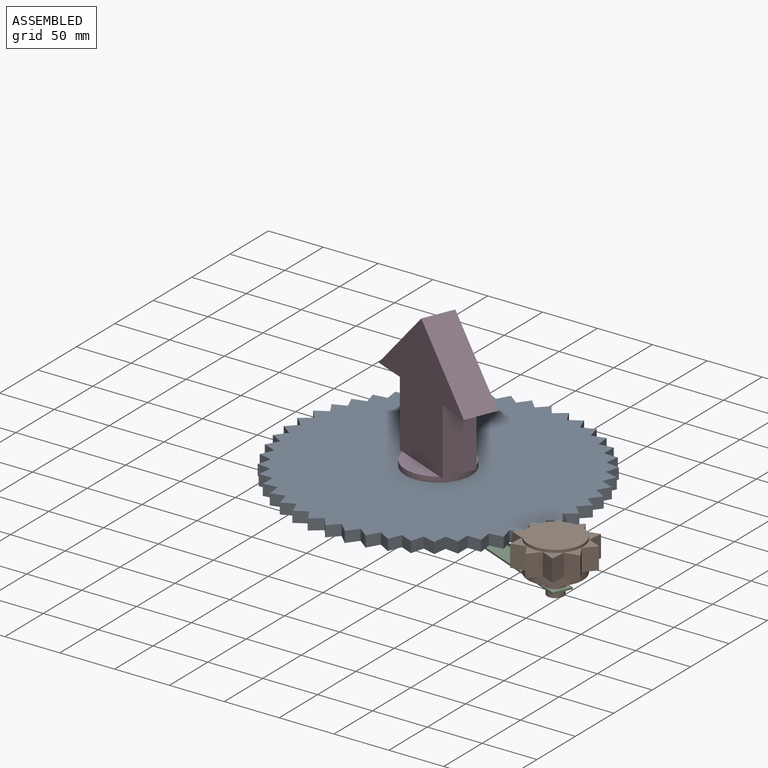
[diagram: assembled view]
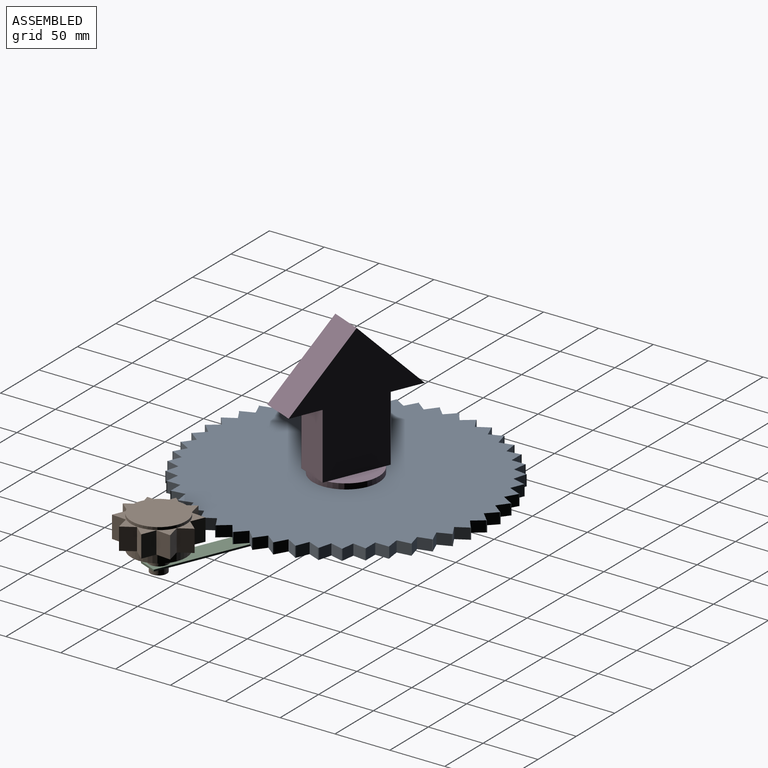
[diagram: assembled view, second angle]
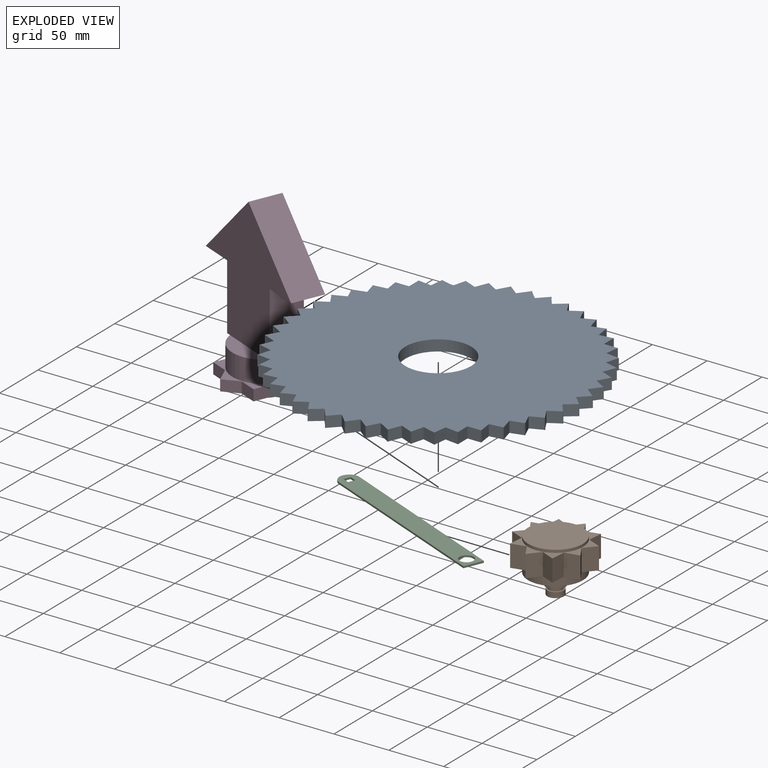
[diagram: exploded view]
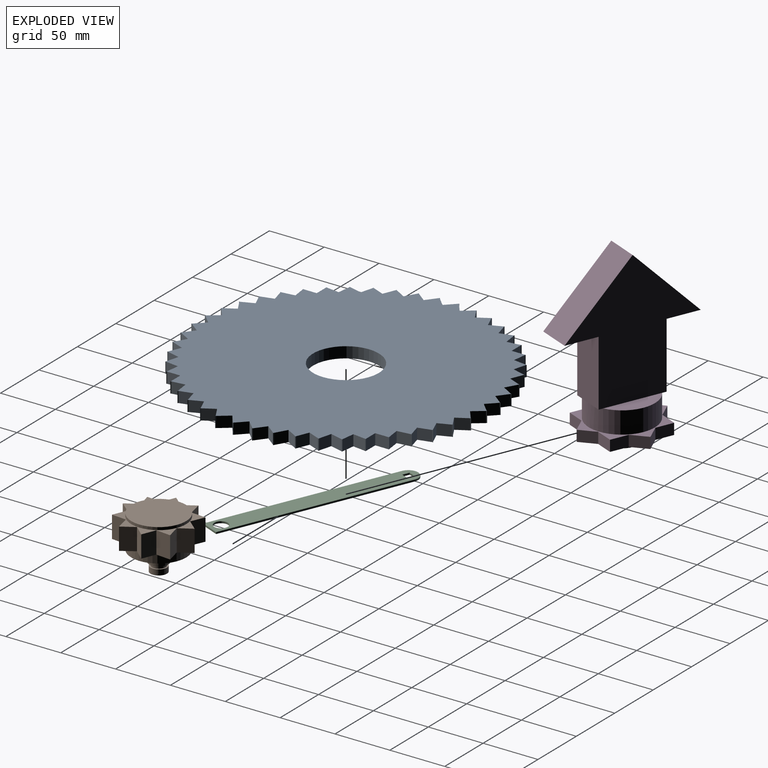
[diagram: exploded view, second angle]
ASSEMBLY  parts=4 mates=3
PART A: 291 faces, bbox 269.3x269.3x10 mm
  f0: cylinder r=30mm len=60mm, axis (0,0,1), area 1885mm2, adj f1,f2
  f1: plane 269.31x269.31mm, normal (0,0,-1), area 50314.6mm2, adj f0,f3,f4,f5,f6,f7,f8,f9
  f2: plane 269.31x269.31mm, normal (0,0,1), area 50314.6mm2, adj f0,f3,f4,f5,f6,f7,f8,f9
  f3: plane 10x0.43mm, normal (-1,0,0), area 4.3mm2, adj f1,f2,f4,f286
  f4: plane 10x0.19mm, normal (0.71,-0.71,0), area 2.7mm2, adj f1,f2,f3,f289
  f5: plane 10x8.59mm, normal (-0.71,-0.71,0), area 121.5mm2, adj f1,f2,f8,f288
  f6: plane 10x0.19mm, normal (-0.71,-0.71,0), area 2.7mm2, adj f1,f2,f7,f287
  f7: plane 10x0.43mm, normal (1,0,0), area 4.3mm2, adj f1,f2,f6,f9
  f8: plane 10x8.59mm, normal (0.71,-0.71,0), area 121.5mm2, adj f1,f2,f5,f290
  f9: plane 10x9.64mm, normal (0.79,-0.61,0), area 121.5mm2, adj f1,f2,f7,f10
  f10: plane 10x9.64mm, normal (-0.61,-0.79,0), area 121.5mm2, adj f1,f2,f9,f15
  f11: plane 10x0.21mm, normal (-0.61,-0.79,0), area 2.7mm2, adj f1,f2,f12,f14
  f12: plane 10x0.43mm, normal (0.99,0.13,0), area 4.3mm2, adj f1,f2,f11,f13
  f13: plane 10.52x10mm, normal (0.87,-0.5,0), area 121.5mm2, adj f1,f2,f12,f16
  f14: plane 10x0.23mm, normal (0.87,-0.5,0), area 2.7mm2, adj f1,f2,f11,f15
  f15: plane 10x0.42mm, normal (-0.97,-0.26,0), area 4.3mm2, adj f1,f2,f10,f14
  f16: plane 10.52x10mm, normal (-0.5,-0.87,0), area 121.5mm2, adj f1,f2,f13,f21
  f17: plane 10x0.23mm, normal (-0.5,-0.87,0), area 2.7mm2, adj f1,f2,f18,f20
  f18: plane 10x0.42mm, normal (0.97,0.26,0), area 4.3mm2, adj f1,f2,f17,f19
  f19: plane 11.23x10mm, normal (0.92,-0.38,0), area 121.5mm2, adj f1,f2,f18,f22
  f20: plane 10x0.25mm, normal (0.92,-0.38,0), area 2.7mm2, adj f1,f2,f17,f21
  f21: plane 10x0.4mm, normal (-0.92,-0.38,0), area 4.3mm2, adj f1,f2,f16,f20
  f22: plane 11.23x10mm, normal (-0.38,-0.92,0), area 121.5mm2, adj f1,f2,f19,f27
  f23: plane 10x0.25mm, normal (-0.38,-0.92,0), area 2.7mm2, adj f1,f2,f24,f26
  f24: plane 10x0.4mm, normal (0.92,0.38,0), area 4.3mm2, adj f1,f2,f23,f25
  f25: plane 11.74x10mm, normal (0.97,-0.26,0), area 121.5mm2, adj f1,f2,f24,f28
  f26: plane 10x0.26mm, normal (0.97,-0.26,0), area 2.7mm2, adj f1,f2,f23,f27
  f27: plane 10x0.38mm, normal (-0.87,-0.5,0), area 4.3mm2, adj f1,f2,f22,f26
  f28: plane 11.74x10mm, normal (-0.26,-0.97,0), area 121.5mm2, adj f1,f2,f25,f33
  f29: plane 10x0.26mm, normal (-0.26,-0.97,0), area 2.7mm2, adj f1,f2,f30,f32
  f30: plane 10x0.38mm, normal (0.87,0.5,0), area 4.3mm2, adj f1,f2,f29,f31
  f31: plane 12.05x10mm, normal (0.99,-0.13,0), area 121.5mm2, adj f1,f2,f30,f34
  f32: plane 10x0.26mm, normal (0.99,-0.13,0), area 2.7mm2, adj f1,f2,f29,f33
  f33: plane 10x0.34mm, normal (-0.79,-0.61,0), area 4.3mm2, adj f1,f2,f28,f32
  f34: plane 12.05x10mm, normal (-0.13,-0.99,0), area 121.5mm2, adj f1,f2,f31,f39
  f35: plane 10x0.26mm, normal (-0.13,-0.99,0), area 2.7mm2, adj f1,f2,f36,f38
  f36: plane 10x0.34mm, normal (0.79,0.61,0), area 4.3mm2, adj f1,f2,f35,f37
  f37: plane 12.15x10mm, normal (1,0,0), area 121.5mm2, adj f1,f2,f36,f40
  f38: plane 10x0.27mm, normal (1,0,0), area 2.7mm2, adj f1,f2,f35,f39
  f39: plane 10x0.31mm, normal (-0.71,-0.71,0), area 4.3mm2, adj f1,f2,f34,f38
  f40: plane 12.15x10mm, normal (0,-1,0), area 121.5mm2, adj f1,f2,f37,f45
  f41: plane 10x0.27mm, normal (0,-1,0), area 2.7mm2, adj f1,f2,f42,f44
  f42: plane 10x0.31mm, normal (0.71,0.71,0), area 4.3mm2, adj f1,f2,f41,f43
  f43: plane 12.05x10mm, normal (0.99,0.13,0), area 121.5mm2, adj f1,f2,f42,f46
  f44: plane 10x0.26mm, normal (0.99,0.13,0), area 2.7mm2, adj f1,f2,f41,f45
  f45: plane 10x0.34mm, normal (-0.61,-0.79,0), area 4.3mm2, adj f1,f2,f40,f44
  f46: plane 12.05x10mm, normal (0.13,-0.99,0), area 121.5mm2, adj f1,f2,f43,f51
  f47: plane 10x0.26mm, normal (0.13,-0.99,0), area 2.7mm2, adj f1,f2,f48,f50
  f48: plane 10x0.34mm, normal (0.61,0.79,0), area 4.3mm2, adj f1,f2,f47,f49
  f49: plane 11.74x10mm, normal (0.97,0.26,0), area 121.5mm2, adj f1,f2,f48,f52
  f50: plane 10x0.26mm, normal (0.97,0.26,0), area 2.7mm2, adj f1,f2,f47,f51
  f51: plane 10x0.38mm, normal (-0.5,-0.87,0), area 4.3mm2, adj f1,f2,f46,f50
  f52: plane 11.74x10mm, normal (0.26,-0.97,0), area 121.5mm2, adj f1,f2,f49,f57
  f53: plane 10x0.26mm, normal (0.26,-0.97,0), area 2.7mm2, adj f1,f2,f54,f56
  f54: plane 10x0.38mm, normal (0.5,0.87,0), area 4.3mm2, adj f1,f2,f53,f55
  f55: plane 11.23x10mm, normal (0.92,0.38,0), area 121.5mm2, adj f1,f2,f54,f58
  f56: plane 10x0.25mm, normal (0.92,0.38,0), area 2.7mm2, adj f1,f2,f53,f57
  f57: plane 10x0.4mm, normal (-0.38,-0.92,0), area 4.3mm2, adj f1,f2,f52,f56
  f58: plane 11.23x10mm, normal (0.38,-0.92,0), area 121.5mm2, adj f1,f2,f55,f63
  f59: plane 10x0.25mm, normal (0.38,-0.92,0), area 2.7mm2, adj f1,f2,f60,f62
  f60: plane 10x0.4mm, normal (0.38,0.92,0), area 4.3mm2, adj f1,f2,f59,f61
  f61: plane 10.52x10mm, normal (0.87,0.5,0), area 121.5mm2, adj f1,f2,f60,f64
  f62: plane 10x0.23mm, normal (0.87,0.5,0), area 2.7mm2, adj f1,f2,f59,f63
  f63: plane 10x0.42mm, normal (-0.26,-0.97,0), area 4.3mm2, adj f1,f2,f58,f62
  f64: plane 10.52x10mm, normal (0.5,-0.87,0), area 121.5mm2, adj f1,f2,f61,f69
  f65: plane 10x0.23mm, normal (0.5,-0.87,0), area 2.7mm2, adj f1,f2,f66,f68
  f66: plane 10x0.42mm, normal (0.26,0.97,0), area 4.3mm2, adj f1,f2,f65,f67
  f67: plane 10x9.64mm, normal (0.79,0.61,0), area 121.5mm2, adj f1,f2,f66,f70
  f68: plane 10x0.21mm, normal (0.79,0.61,0), area 2.7mm2, adj f1,f2,f65,f69
  f69: plane 10x0.43mm, normal (-0.13,-0.99,0), area 4.3mm2, adj f1,f2,f64,f68
  f70: plane 10x9.64mm, normal (0.61,-0.79,0), area 121.5mm2, adj f1,f2,f67,f75
  f71: plane 10x0.21mm, normal (0.61,-0.79,0), area 2.7mm2, adj f1,f2,f72,f74
  f72: plane 10x0.43mm, normal (0.13,0.99,0), area 4.3mm2, adj f1,f2,f71,f73
  f73: plane 10x8.59mm, normal (0.71,0.71,0), area 121.5mm2, adj f1,f2,f72,f76
  f74: plane 10x0.19mm, normal (0.71,0.71,0), area 2.7mm2, adj f1,f2,f71,f75
  f75: plane 10x0.43mm, normal (0,-1,0), area 4.3mm2, adj f1,f2,f70,f74
  f76: plane 10x8.59mm, normal (0.71,-0.71,0), area 121.5mm2, adj f1,f2,f73,f81
  f77: plane 10x0.19mm, normal (0.71,-0.71,0), area 2.7mm2, adj f1,f2,f78,f80
  f78: plane 10x0.43mm, normal (0,1,0), area 4.3mm2, adj f1,f2,f77,f79
  f79: plane 10x9.64mm, normal (0.61,0.79,0), area 121.5mm2, adj f1,f2,f78,f82
  f80: plane 10x0.21mm, normal (0.61,0.79,0), area 2.7mm2, adj f1,f2,f77,f81
  f81: plane 10x0.43mm, normal (0.13,-0.99,0), area 4.3mm2, adj f1,f2,f76,f80
  f82: plane 10x9.64mm, normal (0.79,-0.61,0), area 121.5mm2, adj f1,f2,f79,f87
  f83: plane 10x0.21mm, normal (0.79,-0.61,0), area 2.7mm2, adj f1,f2,f84,f86
  f84: plane 10x0.43mm, normal (-0.13,0.99,0), area 4.3mm2, adj f1,f2,f83,f85
  f85: plane 10.52x10mm, normal (0.5,0.87,0), area 121.5mm2, adj f1,f2,f84,f88
  f86: plane 10x0.23mm, normal (0.5,0.87,0), area 2.7mm2, adj f1,f2,f83,f87
  f87: plane 10x0.42mm, normal (0.26,-0.97,0), area 4.3mm2, adj f1,f2,f82,f86
  f88: plane 10.52x10mm, normal (0.87,-0.5,0), area 121.5mm2, adj f1,f2,f85,f93
  f89: plane 10x0.23mm, normal (0.87,-0.5,0), area 2.7mm2, adj f1,f2,f90,f92
  f90: plane 10x0.42mm, normal (-0.26,0.97,0), area 4.3mm2, adj f1,f2,f89,f91
  f91: plane 11.23x10mm, normal (0.38,0.92,0), area 121.5mm2, adj f1,f2,f90,f94
  f92: plane 10x0.25mm, normal (0.38,0.92,0), area 2.7mm2, adj f1,f2,f89,f93
  f93: plane 10x0.4mm, normal (0.38,-0.92,0), area 4.3mm2, adj f1,f2,f88,f92
  f94: plane 11.23x10mm, normal (0.92,-0.38,0), area 121.5mm2, adj f1,f2,f91,f99
  f95: plane 10x0.25mm, normal (0.92,-0.38,0), area 2.7mm2, adj f1,f2,f96,f98
  f96: plane 10x0.4mm, normal (-0.38,0.92,0), area 4.3mm2, adj f1,f2,f95,f97
  f97: plane 11.74x10mm, normal (0.26,0.97,0), area 121.5mm2, adj f1,f2,f96,f100
  f98: plane 10x0.26mm, normal (0.26,0.97,0), area 2.7mm2, adj f1,f2,f95,f99
  f99: plane 10x0.38mm, normal (0.5,-0.87,0), area 4.3mm2, adj f1,f2,f94,f98
  f100: plane 11.74x10mm, normal (0.97,-0.26,0), area 121.5mm2, adj f1,f2,f97,f105
  f101: plane 10x0.26mm, normal (0.97,-0.26,0), area 2.7mm2, adj f1,f2,f102,f104
  f102: plane 10x0.38mm, normal (-0.5,0.87,0), area 4.3mm2, adj f1,f2,f101,f103
  f103: plane 12.05x10mm, normal (0.13,0.99,0), area 121.5mm2, adj f1,f2,f102,f106
  f104: plane 10x0.26mm, normal (0.13,0.99,0), area 2.7mm2, adj f1,f2,f101,f105
  f105: plane 10x0.34mm, normal (0.61,-0.79,0), area 4.3mm2, adj f1,f2,f100,f104
  f106: plane 12.05x10mm, normal (0.99,-0.13,0), area 121.5mm2, adj f1,f2,f103,f111
  f107: plane 10x0.26mm, normal (0.99,-0.13,0), area 2.7mm2, adj f1,f2,f108,f110
  f108: plane 10x0.34mm, normal (-0.61,0.79,0), area 4.3mm2, adj f1,f2,f107,f109
  f109: plane 12.15x10mm, normal (0,1,0), area 121.5mm2, adj f1,f2,f108,f112
  f110: plane 10x0.27mm, normal (0,1,0), area 2.7mm2, adj f1,f2,f107,f111
  f111: plane 10x0.31mm, normal (0.71,-0.71,0), area 4.3mm2, adj f1,f2,f106,f110
  f112: plane 12.15x10mm, normal (1,0,0), area 121.5mm2, adj f1,f2,f109,f117
  f113: plane 10x0.27mm, normal (1,0,0), area 2.7mm2, adj f1,f2,f114,f116
  f114: plane 10x0.31mm, normal (-0.71,0.71,0), area 4.3mm2, adj f1,f2,f113,f115
  f115: plane 12.05x10mm, normal (-0.13,0.99,0), area 121.5mm2, adj f1,f2,f114,f118
  f116: plane 10x0.26mm, normal (-0.13,0.99,0), area 2.7mm2, adj f1,f2,f113,f117
  f117: plane 10x0.34mm, normal (0.79,-0.61,0), area 4.3mm2, adj f1,f2,f112,f116
  f118: plane 12.05x10mm, normal (0.99,0.13,0), area 121.5mm2, adj f1,f2,f115,f123
  f119: plane 10x0.26mm, normal (0.99,0.13,0), area 2.7mm2, adj f1,f2,f120,f122
  f120: plane 10x0.34mm, normal (-0.79,0.61,0), area 4.3mm2, adj f1,f2,f119,f121
  f121: plane 11.74x10mm, normal (-0.26,0.97,0), area 121.5mm2, adj f1,f2,f120,f124
  f122: plane 10x0.26mm, normal (-0.26,0.97,0), area 2.7mm2, adj f1,f2,f119,f123
  f123: plane 10x0.38mm, normal (0.87,-0.5,0), area 4.3mm2, adj f1,f2,f118,f122
  f124: plane 11.74x10mm, normal (0.97,0.26,0), area 121.5mm2, adj f1,f2,f121,f129
  f125: plane 10x0.26mm, normal (0.97,0.26,0), area 2.7mm2, adj f1,f2,f126,f128
  f126: plane 10x0.38mm, normal (-0.87,0.5,0), area 4.3mm2, adj f1,f2,f125,f127
  f127: plane 11.23x10mm, normal (-0.38,0.92,0), area 121.5mm2, adj f1,f2,f126,f130
  f128: plane 10x0.25mm, normal (-0.38,0.92,0), area 2.7mm2, adj f1,f2,f125,f129
  f129: plane 10x0.4mm, normal (0.92,-0.38,0), area 4.3mm2, adj f1,f2,f124,f128
  f130: plane 11.23x10mm, normal (0.92,0.38,0), area 121.5mm2, adj f1,f2,f127,f135
  f131: plane 10x0.25mm, normal (0.92,0.38,0), area 2.7mm2, adj f1,f2,f132,f134
  f132: plane 10x0.4mm, normal (-0.92,0.38,0), area 4.3mm2, adj f1,f2,f131,f133
  f133: plane 10.52x10mm, normal (-0.5,0.87,0), area 121.5mm2, adj f1,f2,f132,f136
  f134: plane 10x0.23mm, normal (-0.5,0.87,0), area 2.7mm2, adj f1,f2,f131,f135
  f135: plane 10x0.42mm, normal (0.97,-0.26,0), area 4.3mm2, adj f1,f2,f130,f134
  f136: plane 10.52x10mm, normal (0.87,0.5,0), area 121.5mm2, adj f1,f2,f133,f141
  f137: plane 10x0.23mm, normal (0.87,0.5,0), area 2.7mm2, adj f1,f2,f138,f140
  f138: plane 10x0.42mm, normal (-0.97,0.26,0), area 4.3mm2, adj f1,f2,f137,f139
  f139: plane 10x9.64mm, normal (-0.61,0.79,0), area 121.5mm2, adj f1,f2,f138,f142
  f140: plane 10x0.21mm, normal (-0.61,0.79,0), area 2.7mm2, adj f1,f2,f137,f141
  f141: plane 10x0.43mm, normal (0.99,-0.13,0), area 4.3mm2, adj f1,f2,f136,f140
  f142: plane 10x9.64mm, normal (0.79,0.61,0), area 121.5mm2, adj f1,f2,f139,f147
  f143: plane 10x0.21mm, normal (0.79,0.61,0), area 2.7mm2, adj f1,f2,f144,f146
  f144: plane 10x0.43mm, normal (-0.99,0.13,0), area 4.3mm2, adj f1,f2,f143,f145
  f145: plane 10x8.59mm, normal (-0.71,0.71,0), area 121.5mm2, adj f1,f2,f144,f148
  f146: plane 10x0.19mm, normal (-0.71,0.71,0), area 2.7mm2, adj f1,f2,f143,f147
  f147: plane 10x0.43mm, normal (1,0,0), area 4.3mm2, adj f1,f2,f142,f146
  f148: plane 10x8.59mm, normal (0.71,0.71,0), area 121.5mm2, adj f1,f2,f145,f153
  f149: plane 10x0.19mm, normal (0.71,0.71,0), area 2.7mm2, adj f1,f2,f150,f152
  f150: plane 10x0.43mm, normal (-1,0,0), area 4.3mm2, adj f1,f2,f149,f151
  f151: plane 10x9.64mm, normal (-0.79,0.61,0), area 121.5mm2, adj f1,f2,f150,f154
  f152: plane 10x0.21mm, normal (-0.79,0.61,0), area 2.7mm2, adj f1,f2,f149,f153
  f153: plane 10x0.43mm, normal (0.99,0.13,0), area 4.3mm2, adj f1,f2,f148,f152
  f154: plane 10x9.64mm, normal (0.61,0.79,0), area 121.5mm2, adj f1,f2,f151,f159
  f155: plane 10x0.21mm, normal (0.61,0.79,0), area 2.7mm2, adj f1,f2,f156,f158
  f156: plane 10x0.43mm, normal (-0.99,-0.13,0), area 4.3mm2, adj f1,f2,f155,f157
  f157: plane 10.52x10mm, normal (-0.87,0.5,0), area 121.5mm2, adj f1,f2,f156,f160
  f158: plane 10x0.23mm, normal (-0.87,0.5,0), area 2.7mm2, adj f1,f2,f155,f159
  f159: plane 10x0.42mm, normal (0.97,0.26,0), area 4.3mm2, adj f1,f2,f154,f158
  f160: plane 10.52x10mm, normal (0.5,0.87,0), area 121.5mm2, adj f1,f2,f157,f165
  f161: plane 10x0.23mm, normal (0.5,0.87,0), area 2.7mm2, adj f1,f2,f162,f164
  f162: plane 10x0.42mm, normal (-0.97,-0.26,0), area 4.3mm2, adj f1,f2,f161,f163
  f163: plane 11.23x10mm, normal (-0.92,0.38,0), area 121.5mm2, adj f1,f2,f162,f166
  f164: plane 10x0.25mm, normal (-0.92,0.38,0), area 2.7mm2, adj f1,f2,f161,f165
  f165: plane 10x0.4mm, normal (0.92,0.38,0), area 4.3mm2, adj f1,f2,f160,f164
  f166: plane 11.23x10mm, normal (0.38,0.92,0), area 121.5mm2, adj f1,f2,f163,f171
  f167: plane 10x0.25mm, normal (0.38,0.92,0), area 2.7mm2, adj f1,f2,f168,f170
  f168: plane 10x0.4mm, normal (-0.92,-0.38,0), area 4.3mm2, adj f1,f2,f167,f169
  f169: plane 11.74x10mm, normal (-0.97,0.26,0), area 121.5mm2, adj f1,f2,f168,f172
  f170: plane 10x0.26mm, normal (-0.97,0.26,0), area 2.7mm2, adj f1,f2,f167,f171
  f171: plane 10x0.38mm, normal (0.87,0.5,0), area 4.3mm2, adj f1,f2,f166,f170
  f172: plane 11.74x10mm, normal (0.26,0.97,0), area 121.5mm2, adj f1,f2,f169,f177
  f173: plane 10x0.26mm, normal (0.26,0.97,0), area 2.7mm2, adj f1,f2,f174,f176
  f174: plane 10x0.38mm, normal (-0.87,-0.5,0), area 4.3mm2, adj f1,f2,f173,f175
  f175: plane 12.05x10mm, normal (-0.99,0.13,0), area 121.5mm2, adj f1,f2,f174,f178
  f176: plane 10x0.26mm, normal (-0.99,0.13,0), area 2.7mm2, adj f1,f2,f173,f177
  f177: plane 10x0.34mm, normal (0.79,0.61,0), area 4.3mm2, adj f1,f2,f172,f176
  f178: plane 12.05x10mm, normal (0.13,0.99,0), area 121.5mm2, adj f1,f2,f175,f183
  f179: plane 10x0.26mm, normal (0.13,0.99,0), area 2.7mm2, adj f1,f2,f180,f182
  f180: plane 10x0.34mm, normal (-0.79,-0.61,0), area 4.3mm2, adj f1,f2,f179,f181
  f181: plane 12.15x10mm, normal (-1,0,0), area 121.5mm2, adj f1,f2,f180,f184
  f182: plane 10x0.27mm, normal (-1,0,0), area 2.7mm2, adj f1,f2,f179,f183
  f183: plane 10x0.31mm, normal (0.71,0.71,0), area 4.3mm2, adj f1,f2,f178,f182
  f184: plane 12.15x10mm, normal (0,1,0), area 121.5mm2, adj f1,f2,f181,f189
  f185: plane 10x0.27mm, normal (0,1,0), area 2.7mm2, adj f1,f2,f186,f188
  f186: plane 10x0.31mm, normal (-0.71,-0.71,0), area 4.3mm2, adj f1,f2,f185,f187
  f187: plane 12.05x10mm, normal (-0.99,-0.13,0), area 121.5mm2, adj f1,f2,f186,f190
  f188: plane 10x0.26mm, normal (-0.99,-0.13,0), area 2.7mm2, adj f1,f2,f185,f189
  f189: plane 10x0.34mm, normal (0.61,0.79,0), area 4.3mm2, adj f1,f2,f184,f188
  f190: plane 12.05x10mm, normal (-0.13,0.99,0), area 121.5mm2, adj f1,f2,f187,f195
  f191: plane 10x0.26mm, normal (-0.13,0.99,0), area 2.7mm2, adj f1,f2,f192,f194
  f192: plane 10x0.34mm, normal (-0.61,-0.79,0), area 4.3mm2, adj f1,f2,f191,f193
  f193: plane 11.74x10mm, normal (-0.97,-0.26,0), area 121.5mm2, adj f1,f2,f192,f196
  f194: plane 10x0.26mm, normal (-0.97,-0.26,0), area 2.7mm2, adj f1,f2,f191,f195
  f195: plane 10x0.38mm, normal (0.5,0.87,0), area 4.3mm2, adj f1,f2,f190,f194
  f196: plane 11.74x10mm, normal (-0.26,0.97,0), area 121.5mm2, adj f1,f2,f193,f201
  f197: plane 10x0.26mm, normal (-0.26,0.97,0), area 2.7mm2, adj f1,f2,f198,f200
  f198: plane 10x0.38mm, normal (-0.5,-0.87,0), area 4.3mm2, adj f1,f2,f197,f199
  f199: plane 11.23x10mm, normal (-0.92,-0.38,0), area 121.5mm2, adj f1,f2,f198,f202
  f200: plane 10x0.25mm, normal (-0.92,-0.38,0), area 2.7mm2, adj f1,f2,f197,f201
  f201: plane 10x0.4mm, normal (0.38,0.92,0), area 4.3mm2, adj f1,f2,f196,f200
  f202: plane 11.23x10mm, normal (-0.38,0.92,0), area 121.5mm2, adj f1,f2,f199,f207
  f203: plane 10x0.25mm, normal (-0.38,0.92,0), area 2.7mm2, adj f1,f2,f204,f206
  f204: plane 10x0.4mm, normal (-0.38,-0.92,0), area 4.3mm2, adj f1,f2,f203,f205
  f205: plane 10.52x10mm, normal (-0.87,-0.5,0), area 121.5mm2, adj f1,f2,f204,f208
  f206: plane 10x0.23mm, normal (-0.87,-0.5,0), area 2.7mm2, adj f1,f2,f203,f207
  f207: plane 10x0.42mm, normal (0.26,0.97,0), area 4.3mm2, adj f1,f2,f202,f206
  f208: plane 10.52x10mm, normal (-0.5,0.87,0), area 121.5mm2, adj f1,f2,f205,f213
  f209: plane 10x0.23mm, normal (-0.5,0.87,0), area 2.7mm2, adj f1,f2,f210,f212
  f210: plane 10x0.42mm, normal (-0.26,-0.97,0), area 4.3mm2, adj f1,f2,f209,f211
  f211: plane 10x9.64mm, normal (-0.79,-0.61,0), area 121.5mm2, adj f1,f2,f210,f214
  f212: plane 10x0.21mm, normal (-0.79,-0.61,0), area 2.7mm2, adj f1,f2,f209,f213
  f213: plane 10x0.43mm, normal (0.13,0.99,0), area 4.3mm2, adj f1,f2,f208,f212
  f214: plane 10x9.64mm, normal (-0.61,0.79,0), area 121.5mm2, adj f1,f2,f211,f219
  f215: plane 10x0.21mm, normal (-0.61,0.79,0), area 2.7mm2, adj f1,f2,f216,f218
  f216: plane 10x0.43mm, normal (-0.13,-0.99,0), area 4.3mm2, adj f1,f2,f215,f217
  f217: plane 10x8.59mm, normal (-0.71,-0.71,0), area 121.5mm2, adj f1,f2,f216,f220
  f218: plane 10x0.19mm, normal (-0.71,-0.71,0), area 2.7mm2, adj f1,f2,f215,f219
  f219: plane 10x0.43mm, normal (0,1,0), area 4.3mm2, adj f1,f2,f214,f218
  f220: plane 10x8.59mm, normal (-0.71,0.71,0), area 121.5mm2, adj f1,f2,f217,f225
  f221: plane 10x0.19mm, normal (-0.71,0.71,0), area 2.7mm2, adj f1,f2,f222,f224
  f222: plane 10x0.43mm, normal (0,-1,0), area 4.3mm2, adj f1,f2,f221,f223
  f223: plane 10x9.64mm, normal (-0.61,-0.79,0), area 121.5mm2, adj f1,f2,f222,f226
  f224: plane 10x0.21mm, normal (-0.61,-0.79,0), area 2.7mm2, adj f1,f2,f221,f225
  f225: plane 10x0.43mm, normal (-0.13,0.99,0), area 4.3mm2, adj f1,f2,f220,f224
  f226: plane 10x9.64mm, normal (-0.79,0.61,0), area 121.5mm2, adj f1,f2,f223,f231
  f227: plane 10x0.21mm, normal (-0.79,0.61,0), area 2.7mm2, adj f1,f2,f228,f230
  f228: plane 10x0.43mm, normal (0.13,-0.99,0), area 4.3mm2, adj f1,f2,f227,f229
  f229: plane 10.52x10mm, normal (-0.5,-0.87,0), area 121.5mm2, adj f1,f2,f228,f232
  f230: plane 10x0.23mm, normal (-0.5,-0.87,0), area 2.7mm2, adj f1,f2,f227,f231
  f231: plane 10x0.42mm, normal (-0.26,0.97,0), area 4.3mm2, adj f1,f2,f226,f230
  f232: plane 10.52x10mm, normal (-0.87,0.5,0), area 121.5mm2, adj f1,f2,f229,f237
  f233: plane 10x0.23mm, normal (-0.87,0.5,0), area 2.7mm2, adj f1,f2,f234,f236
  f234: plane 10x0.42mm, normal (0.26,-0.97,0), area 4.3mm2, adj f1,f2,f233,f235
  f235: plane 11.23x10mm, normal (-0.38,-0.92,0), area 121.5mm2, adj f1,f2,f234,f238
  f236: plane 10x0.25mm, normal (-0.38,-0.92,0), area 2.7mm2, adj f1,f2,f233,f237
  f237: plane 10x0.4mm, normal (-0.38,0.92,0), area 4.3mm2, adj f1,f2,f232,f236
  f238: plane 11.23x10mm, normal (-0.92,0.38,0), area 121.5mm2, adj f1,f2,f235,f243
  f239: plane 10x0.25mm, normal (-0.92,0.38,0), area 2.7mm2, adj f1,f2,f240,f242
  f240: plane 10x0.4mm, normal (0.38,-0.92,0), area 4.3mm2, adj f1,f2,f239,f241
  f241: plane 11.74x10mm, normal (-0.26,-0.97,0), area 121.5mm2, adj f1,f2,f240,f244
  f242: plane 10x0.26mm, normal (-0.26,-0.97,0), area 2.7mm2, adj f1,f2,f239,f243
  f243: plane 10x0.38mm, normal (-0.5,0.87,0), area 4.3mm2, adj f1,f2,f238,f242
  f244: plane 11.74x10mm, normal (-0.97,0.26,0), area 121.5mm2, adj f1,f2,f241,f249
  f245: plane 10x0.26mm, normal (-0.97,0.26,0), area 2.7mm2, adj f1,f2,f246,f248
  f246: plane 10x0.38mm, normal (0.5,-0.87,0), area 4.3mm2, adj f1,f2,f245,f247
  f247: plane 12.05x10mm, normal (-0.13,-0.99,0), area 121.5mm2, adj f1,f2,f246,f250
  f248: plane 10x0.26mm, normal (-0.13,-0.99,0), area 2.7mm2, adj f1,f2,f245,f249
  f249: plane 10x0.34mm, normal (-0.61,0.79,0), area 4.3mm2, adj f1,f2,f244,f248
  f250: plane 12.05x10mm, normal (-0.99,0.13,0), area 121.5mm2, adj f1,f2,f247,f255
  f251: plane 10x0.26mm, normal (-0.99,0.13,0), area 2.7mm2, adj f1,f2,f252,f254
  f252: plane 10x0.34mm, normal (0.61,-0.79,0), area 4.3mm2, adj f1,f2,f251,f253
  f253: plane 12.15x10mm, normal (0,-1,0), area 121.5mm2, adj f1,f2,f252,f256
  f254: plane 10x0.27mm, normal (0,-1,0), area 2.7mm2, adj f1,f2,f251,f255
  f255: plane 10x0.31mm, normal (-0.71,0.71,0), area 4.3mm2, adj f1,f2,f250,f254
  f256: plane 12.15x10mm, normal (-1,0,0), area 121.5mm2, adj f1,f2,f253,f261
  f257: plane 10x0.27mm, normal (-1,0,0), area 2.7mm2, adj f1,f2,f258,f260
  f258: plane 10x0.31mm, normal (0.71,-0.71,0), area 4.3mm2, adj f1,f2,f257,f259
  f259: plane 12.05x10mm, normal (0.13,-0.99,0), area 121.5mm2, adj f1,f2,f258,f262
  f260: plane 10x0.26mm, normal (0.13,-0.99,0), area 2.7mm2, adj f1,f2,f257,f261
  f261: plane 10x0.34mm, normal (-0.79,0.61,0), area 4.3mm2, adj f1,f2,f256,f260
  f262: plane 12.05x10mm, normal (-0.99,-0.13,0), area 121.5mm2, adj f1,f2,f259,f267
  f263: plane 10x0.26mm, normal (-0.99,-0.13,0), area 2.7mm2, adj f1,f2,f264,f266
  f264: plane 10x0.34mm, normal (0.79,-0.61,0), area 4.3mm2, adj f1,f2,f263,f265
  f265: plane 11.74x10mm, normal (0.26,-0.97,0), area 121.5mm2, adj f1,f2,f264,f268
  f266: plane 10x0.26mm, normal (0.26,-0.97,0), area 2.7mm2, adj f1,f2,f263,f267
  f267: plane 10x0.38mm, normal (-0.87,0.5,0), area 4.3mm2, adj f1,f2,f262,f266
  f268: plane 11.74x10mm, normal (-0.97,-0.26,0), area 121.5mm2, adj f1,f2,f265,f273
  f269: plane 10x0.26mm, normal (-0.97,-0.26,0), area 2.7mm2, adj f1,f2,f270,f272
  f270: plane 10x0.38mm, normal (0.87,-0.5,0), area 4.3mm2, adj f1,f2,f269,f271
  f271: plane 11.23x10mm, normal (0.38,-0.92,0), area 121.5mm2, adj f1,f2,f270,f274
  f272: plane 10x0.25mm, normal (0.38,-0.92,0), area 2.7mm2, adj f1,f2,f269,f273
  f273: plane 10x0.4mm, normal (-0.92,0.38,0), area 4.3mm2, adj f1,f2,f268,f272
  f274: plane 11.23x10mm, normal (-0.92,-0.38,0), area 121.5mm2, adj f1,f2,f271,f279
  f275: plane 10x0.25mm, normal (-0.92,-0.38,0), area 2.7mm2, adj f1,f2,f276,f278
  f276: plane 10x0.4mm, normal (0.92,-0.38,0), area 4.3mm2, adj f1,f2,f275,f277
  f277: plane 10.52x10mm, normal (0.5,-0.87,0), area 121.5mm2, adj f1,f2,f276,f280
  f278: plane 10x0.23mm, normal (0.5,-0.87,0), area 2.7mm2, adj f1,f2,f275,f279
  f279: plane 10x0.42mm, normal (-0.97,0.26,0), area 4.3mm2, adj f1,f2,f274,f278
  f280: plane 10.52x10mm, normal (-0.87,-0.5,0), area 121.5mm2, adj f1,f2,f277,f285
  f281: plane 10x0.23mm, normal (-0.87,-0.5,0), area 2.7mm2, adj f1,f2,f282,f284
  f282: plane 10x0.42mm, normal (0.97,-0.26,0), area 4.3mm2, adj f1,f2,f281,f283
  f283: plane 10x9.64mm, normal (0.61,-0.79,0), area 121.5mm2, adj f1,f2,f282,f286
  f284: plane 10x0.21mm, normal (0.61,-0.79,0), area 2.7mm2, adj f1,f2,f281,f285
  f285: plane 10x0.43mm, normal (-0.99,0.13,0), area 4.3mm2, adj f1,f2,f280,f284
  f286: plane 10x9.64mm, normal (-0.79,-0.61,0), area 121.5mm2, adj f1,f2,f3,f283
  f287: plane 10x0.21mm, normal (0.79,-0.61,0), area 2.7mm2, adj f1,f2,f6,f288
  f288: plane 10x0.43mm, normal (-0.99,-0.13,0), area 4.3mm2, adj f1,f2,f5,f287
  f289: plane 10x0.21mm, normal (-0.79,-0.61,0), area 2.7mm2, adj f1,f2,f4,f290
  f290: plane 10x0.43mm, normal (0.99,-0.13,0), area 4.3mm2, adj f1,f2,f8,f289
PART B: 32 faces, bbox 66.6x70x48 mm
  f0: cylinder r=25mm len=50mm, axis (0,0,-1), area 1178.1mm2, adj f7,f10
  f1: cylinder r=6.25mm len=12.5mm, axis (0,0,-1), area 117.8mm2, adj f3,f6
  f2: cylinder r=8.75mm len=17.5mm, axis (0,0,-1), area 549.8mm2, adj f3,f7
  f3: plane 17.5x17.5mm, normal (0,0,-1), area 117.8mm2, adj f1,f2
  f4: cylinder r=7.5mm len=15mm, axis (0,0,1), area 235.6mm2, adj f5,f6
  f5: plane 15x15mm, normal (0,0,-1), area 176.7mm2, adj f4
  f6: plane 15x15mm, normal (0,0,1), area 54mm2, adj f1,f4
  f7: plane 50x50mm, normal (0,0,-1), area 1723mm2, adj f0,f2
  f8: plane 20x10.94mm, normal (-0.81,0.58,0), area 269mm2, adj f9,f10,f11,f29
  f9: plane 20x10.94mm, normal (0.81,0.58,0), area 269mm2, adj f8,f10,f11,f12
  f10: plane 70x66.57mm, normal (0,0,-1), area 772.3mm2, adj f0,f8,f9,f12,f13,f14,f15,f16
  f11: plane 70x66.57mm, normal (0,0,1), area 772.3mm2, adj f8,f9,f12,f13,f14,f15,f16,f17
  f12: plane 20x12.76mm, normal (-0.32,0.95,0), area 269mm2, adj f9,f10,f11,f13
  f13: plane 20x13.45mm, normal (1,-0.01,0), area 269mm2, adj f10,f11,f12,f14
  f14: plane 20x12.82mm, normal (0.3,0.95,0), area 269mm2, adj f10,f11,f13,f15
  f15: plane 20x10.82mm, normal (0.8,-0.59,0), area 269mm2, adj f10,f11,f14,f16
  f16: plane 20x10.82mm, normal (0.8,0.59,0), area 269mm2, adj f10,f11,f15,f17
  f17: plane 20x12.82mm, normal (0.3,-0.95,0), area 269mm2, adj f10,f11,f16,f18
  f18: plane 20x13.45mm, normal (1,0.01,0), area 269mm2, adj f10,f11,f17,f19
  f19: plane 20x12.76mm, normal (-0.32,-0.95,0), area 269mm2, adj f10,f11,f18,f20
  f20: plane 20x10.94mm, normal (0.81,-0.58,0), area 269mm2, adj f10,f11,f19,f21
  f21: plane 20x10.94mm, normal (-0.81,-0.58,0), area 269mm2, adj f10,f11,f20,f22
  f22: plane 20x12.76mm, normal (0.32,-0.95,0), area 269mm2, adj f10,f11,f21,f23
  f23: plane 20x13.45mm, normal (-1,0.01,0), area 269mm2, adj f10,f11,f22,f24
  f24: plane 20x12.82mm, normal (-0.3,-0.95,0), area 269mm2, adj f10,f11,f23,f25
  f25: plane 20x10.82mm, normal (-0.8,0.59,0), area 269mm2, adj f10,f11,f24,f26
  f26: plane 20x10.82mm, normal (-0.8,-0.59,0), area 269mm2, adj f10,f11,f25,f27
  f27: plane 20x12.82mm, normal (-0.3,0.95,0), area 269mm2, adj f10,f11,f26,f28
  f28: plane 20x13.45mm, normal (-1,-0.01,0), area 269mm2, adj f10,f11,f27,f29
  f29: plane 20x12.76mm, normal (0.32,0.95,0), area 269mm2, adj f8,f10,f11,f28
  f30: plane 50x50mm, normal (0,0,1), area 1963.5mm2, adj f31
  f31: cylinder r=25mm len=50mm, axis (0,0,-1), area 392.7mm2, adj f11,f30
PART C: 11 faces, bbox 18x184x1.6 mm
  f0: plane 6.37x1.6mm, normal (1,0,0), area 10.2mm2, adj f1,f7,f8,f9
  f1: plane 6.36x1.6mm, normal (0,1,0), area 10.2mm2, adj f0,f2,f8,f9
  f2: plane 6.37x1.6mm, normal (-1,0,0), area 10.2mm2, adj f1,f7,f8,f9
  f3: cylinder r=9mm len=18mm, axis (0,0,1), area 45.2mm2, adj f4,f6,f8,f9
  f4: plane 175x1.6mm, normal (1,0,0), area 280mm2, adj f3,f5,f8,f9
  f5: plane 18x1.6mm, normal (0,-1,0), area 28.8mm2, adj f4,f6,f8,f9
  f6: plane 175x1.6mm, normal (-1,0,0), area 280mm2, adj f3,f5,f8,f9
  f7: plane 6.36x1.6mm, normal (0,-1,0), area 10.2mm2, adj f0,f2,f8,f9
  f8: plane 184x18mm, normal (0,0,-1), area 3114mm2, adj f0,f1,f2,f3,f4,f5,f6,f7
  f9: plane 184x18mm, normal (0,0,1), area 3114mm2, adj f0,f1,f2,f3,f4,f5,f6,f7
  f10: cylinder r=6.25mm len=12.5mm, axis (0,0,-1), area 62.8mm2, adj f8,f9
PART D: 42 faces, bbox 80x120x162 mm
  f0: cylinder r=30mm len=60mm, axis (0,0,1), area 3769.9mm2, adj f1,f2,f3,f6,f13,f14,f17
  f1: plane 15x4.02mm, normal (0,0,-1), area 19.5mm2, adj f0,f5,f11
  f2: plane 15x4.02mm, normal (0,0,-1), area 19.5mm2, adj f0,f5,f12
  f3: plane 15x4.02mm, normal (0,0,-1), area 19.5mm2, adj f0,f7,f12
  f4: plane 30x30mm, normal (0,0,-1), area 900mm2, adj f5,f10,f11,f12
  f5: plane 60x30mm, normal (0,-1,0), area 1800mm2, adj f1,f2,f4,f11,f12
  f6: plane 15x4.02mm, normal (0,0,-1), area 19.5mm2, adj f0,f7,f11
  f7: plane 60x30mm, normal (0,1,0), area 1800mm2, adj f3,f6,f8,f11,f12
  f8: plane 30x30mm, normal (0,0,-1), area 900mm2, adj f7,f9,f11,f12
  f9: plane 60x60mm, normal (0,0.71,0.71), area 2545.6mm2, adj f8,f10,f11,f12
  f10: plane 60x60mm, normal (0,-0.71,0.71), area 2545.6mm2, adj f4,f9,f11,f12
  f11: plane 120x120mm, normal (1,0,0), area 7200mm2, adj f1,f4,f5,f6,f7,f8,f9,f10
  f12: plane 120x120mm, normal (-1,0,0), area 7200mm2, adj f2,f3,f4,f5,f7,f8,f9,f10
  f13: plane 51.96x15mm, normal (0,0,1), area 552.8mm2, adj f0,f11
  f14: plane 51.96x15mm, normal (0,0,1), area 552.8mm2, adj f0,f12
  f15: plane 11.72x11.72mm, normal (0.71,0.71,0), area 165.7mm2, adj f16,f17,f31,f32
  f16: plane 11.72x11.72mm, normal (-0.71,0.71,0), area 165.7mm2, adj f15,f17,f18,f32
  f17: plane 80x80mm, normal (0,0,1), area 921.6mm2, adj f0,f15,f16,f18,f19,f20,f21,f22
  f18: plane 16.57x10mm, normal (0,1,0), area 165.7mm2, adj f16,f17,f19,f32
  f19: plane 16.57x10mm, normal (-1,0,0), area 165.7mm2, adj f17,f18,f20,f32
  f20: plane 11.72x11.72mm, normal (-0.71,0.71,0), area 165.7mm2, adj f17,f19,f21,f32
  f21: plane 11.72x11.72mm, normal (-0.71,-0.71,0), area 165.7mm2, adj f17,f20,f22,f32
  f22: plane 16.57x10mm, normal (-1,0,0), area 165.7mm2, adj f17,f21,f23,f32
  f23: plane 16.57x10mm, normal (0,-1,0), area 165.7mm2, adj f17,f22,f24,f32
  f24: plane 11.72x11.72mm, normal (-0.71,-0.71,0), area 165.7mm2, adj f17,f23,f25,f32
  f25: plane 11.72x11.72mm, normal (0.71,-0.71,0), area 165.7mm2, adj f17,f24,f26,f32
  f26: plane 16.57x10mm, normal (0,-1,0), area 165.7mm2, adj f17,f25,f27,f32
  f27: plane 16.57x10mm, normal (1,0,0), area 165.7mm2, adj f17,f26,f28,f32
  f28: plane 11.72x11.72mm, normal (0.71,-0.71,0), area 165.7mm2, adj f17,f27,f29,f32
  f29: plane 11.72x11.72mm, normal (0.71,0.71,0), area 165.7mm2, adj f17,f28,f30,f32
  f30: plane 16.57x10mm, normal (1,0,0), area 165.7mm2, adj f17,f29,f31,f32
  f31: plane 16.57x10mm, normal (0,1,0), area 165.7mm2, adj f15,f17,f30,f32
  f32: plane 80x80mm, normal (0,0,-1), area 2993.4mm2, adj f15,f16,f18,f19,f20,f21,f22,f23
  f33: cylinder r=15.51mm len=31.02mm, axis (0,0,1), area 779.6mm2, adj f32,f34
  f34: plane 31.02x31.02mm, normal (0,0,-1), area 715.1mm2, adj f33,f35,f36,f37,f38
  f35: plane 6.37x2mm, normal (-1,0,0), area 12.7mm2, adj f34,f36,f38,f39
  f36: plane 6.36x2mm, normal (0,1,0), area 12.7mm2, adj f34,f35,f37,f39
  f37: plane 6.37x2mm, normal (1,0,0), area 12.7mm2, adj f34,f36,f38,f39
  f38: plane 6.36x2mm, normal (0,-1,0), area 12.7mm2, adj f34,f35,f37,f39
  f39: plane 12.5x12.5mm, normal (0,0,1), area 82.2mm2, adj f35,f36,f37,f38,f40
  f40: cylinder r=6.25mm len=12.5mm, axis (0,0,1), area 78.5mm2, adj f39,f41
  f41: plane 12.5x12.5mm, normal (0,0,-1), area 122.7mm2, adj f40
PLACE A at identity fixed
PLACE B rot(axis=(0,0,1),67.1deg) t=(0,0,5)mm
PLACE C rot(axis=(0,0,1),67.1deg) t=(0,0,5)mm
PLACE D rot(axis=(0,0,1),67.1deg) t=(0,0,5)mm
MATE revolute D.f0 <-> A.f0  axis (0,0,1) through (0,0,-65)mm
MATE fastened D.f36 <-> C.f7  axis (-0.92,0.39,0) through (-2.93,1.24,-94)mm
MATE fastened B.f0 <-> C.f10  axis (0,0,-1) through (151.95,-64.31,-94)mm
